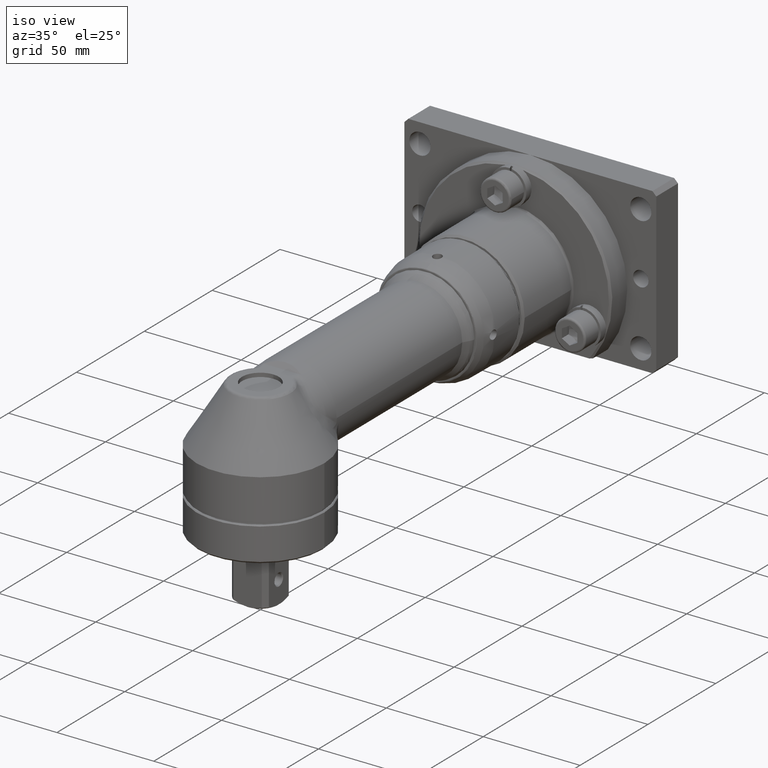
[diagram: clean part render]
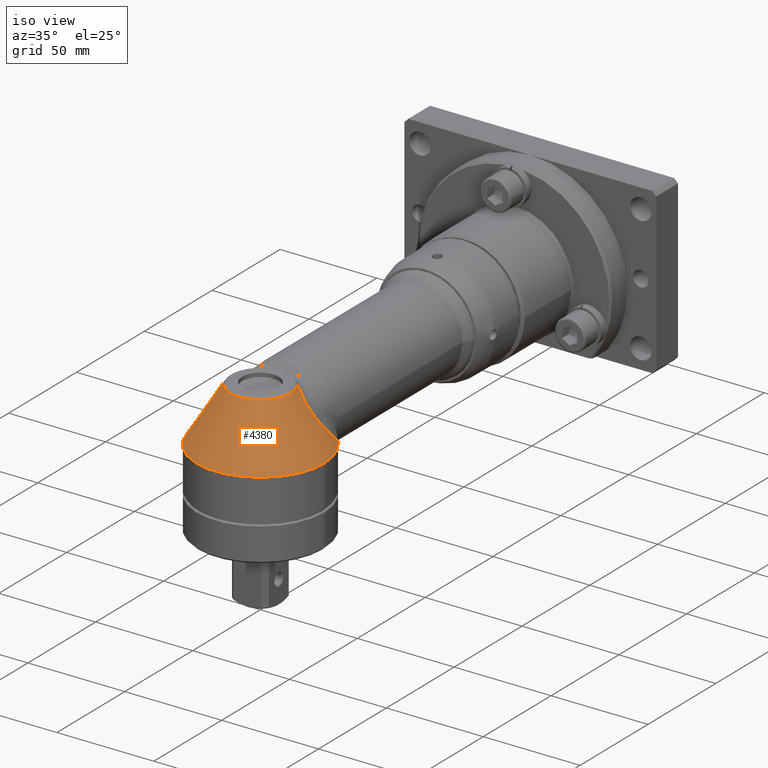
[diagram: same view with one face highlighted and labeled with its STEP entity id]
A machine part, iso view. The second image highlights one B-rep face of the part: STEP entity #4380.
In plain terms, the highlighted conical surface has half-angle 31.827 deg.
Its self-contained STEP definition (entity closure, byte-faithful):
#104=B_SPLINE_CURVE_WITH_KNOTS('',3,(#7526,#7527,#7528,#7529),
 .UNSPECIFIED.,.F.,.F.,(4,4),(-0.250366050684989,-1.84879626133252E-13),
 .UNSPECIFIED.);
#105=B_SPLINE_CURVE_WITH_KNOTS('',3,(#7531,#7532,#7533,#7534),
 .UNSPECIFIED.,.F.,.F.,(4,4),(-3.92410773251652,-3.67374168368724),
 .UNSPECIFIED.);
#106=B_SPLINE_CURVE_WITH_KNOTS('',3,(#7536,#7537,#7538,#7539,#7540,#7541,
#7542,#7543,#7544),.UNSPECIFIED.,.F.,.F.,(4,1,1,1,1,1,4),(-3.52469197188499,
-3.02116454733,-2.517637122775,-2.01410969822,-1.510582273665,-0.503527424554999,
0.),.UNSPECIFIED.);
#107=B_SPLINE_CURVE_WITH_KNOTS('',3,(#7547,#7548,#7549,#7550,#7551,#7552,
#7553,#7554,#7555),.UNSPECIFIED.,.F.,.F.,(4,1,1,1,1,1,4),(-3.52463635617369,
-2.51759739726702,-2.01407791781369,-1.51055843836036,-1.00703895890703,
-0.503519479453701,-3.70322134086901E-13),.UNSPECIFIED.);
#148=CONICAL_SURFACE('',#4740,24.,0.555493735265543);
#789=FACE_OUTER_BOUND('',#1049,.T.);
#1049=EDGE_LOOP('',(#3129,#3130,#3131,#3132,#3133,#3134,#3135));
#1361=CIRCLE('',#4715,33.);
#1364=CIRCLE('',#4718,33.);
#1379=CIRCLE('',#4741,15.5867219646892);
#1764=VERTEX_POINT('',#7404);
#1765=VERTEX_POINT('',#7415);
#1768=VERTEX_POINT('',#7422);
#1788=VERTEX_POINT('',#7525);
#1789=VERTEX_POINT('',#7530);
#1790=VERTEX_POINT('',#7535);
#1791=VERTEX_POINT('',#7545);
#2267=EDGE_CURVE('',#1765,#1764,#1361,.T.);
#2271=EDGE_CURVE('',#1768,#1765,#1364,.T.);
#2297=EDGE_CURVE('',#1768,#1788,#104,.T.);
#2298=EDGE_CURVE('',#1789,#1764,#105,.T.);
#2299=EDGE_CURVE('',#1790,#1789,#106,.T.);
#2300=EDGE_CURVE('',#1791,#1790,#1379,.T.);
#2301=EDGE_CURVE('',#1788,#1791,#107,.T.);
#3129=ORIENTED_EDGE('',*,*,#2297,.F.);
#3130=ORIENTED_EDGE('',*,*,#2271,.T.);
#3131=ORIENTED_EDGE('',*,*,#2267,.T.);
#3132=ORIENTED_EDGE('',*,*,#2298,.F.);
#3133=ORIENTED_EDGE('',*,*,#2299,.F.);
#3134=ORIENTED_EDGE('',*,*,#2300,.F.);
#3135=ORIENTED_EDGE('',*,*,#2301,.F.);
#4380=ADVANCED_FACE('',(#789),#148,.T.);
#4715=AXIS2_PLACEMENT_3D('',#7416,#5489,#5490);
#4718=AXIS2_PLACEMENT_3D('',#7423,#5496,#5497);
#4740=AXIS2_PLACEMENT_3D('',#7524,#5544,#5545);
#4741=AXIS2_PLACEMENT_3D('',#7546,#5546,#5547);
#5489=DIRECTION('center_axis',(-2.51278438236415E-15,2.47358770109276E-30,
1.));
#5490=DIRECTION('ref_axis',(1.,-6.70462140602243E-16,2.51278438236415E-15));
#5496=DIRECTION('center_axis',(-2.51278438236415E-15,2.47358770109276E-30,
1.));
#5497=DIRECTION('ref_axis',(1.,-6.70462140602243E-16,2.51278438236415E-15));
#5544=DIRECTION('center_axis',(2.51278438236415E-15,-2.47358770109276E-30,
-1.));
#5545=DIRECTION('ref_axis',(-1.01113107351369E-11,-1.,1.2246467988933E-16));
#5546=DIRECTION('center_axis',(-2.67523478007517E-15,2.58319715668433E-29,
1.));
#5547=DIRECTION('ref_axis',(-8.22718544505513E-14,-1.,-1.94264554880554E-28));
#7404=CARTESIAN_POINT('',(24.9781081050326,21.5660407927144,-8.9999999990097));
#7415=CARTESIAN_POINT('',(33.,-1.80839162026878E-14,-8.99999999999991));
#7416=CARTESIAN_POINT('Origin',(2.26150594412773E-14,-2.22622893098349E-29,
-8.99999999999999));
#7422=CARTESIAN_POINT('',(-24.9781081047678,21.5660407934603,-8.9999999999347));
#7423=CARTESIAN_POINT('Origin',(2.26150594412773E-14,-2.22622893098349E-29,
-8.99999999999999));
#7524=CARTESIAN_POINT('Origin',(-1.38203141030028E-14,1.36047323560102E-29,
5.50000000000001));
#7525=CARTESIAN_POINT('',(-25.0202849324219,19.908115969031,-7.34727873487054));
#7526=CARTESIAN_POINT('Ctrl Pts',(-24.9781117177503,21.5660385086011,-9.00000316337551));
#7527=CARTESIAN_POINT('Ctrl Pts',(-25.0063182284745,21.0119297991685,-8.45098709156732));
#7528=CARTESIAN_POINT('Ctrl Pts',(-25.0203474710151,20.4590618274538,-7.90002677174035));
#7529=CARTESIAN_POINT('Ctrl Pts',(-25.0202849324219,19.9081159690297,-7.3472787348693));
#7530=CARTESIAN_POINT('',(25.020284932422,19.9081159690375,-7.34727873487706));
#7531=CARTESIAN_POINT('Ctrl Pts',(25.020284932422,19.9081159690375,-7.34727873487706));
#7532=CARTESIAN_POINT('Ctrl Pts',(25.0203474710145,20.4590618233785,-7.90002676765152));
#7533=CARTESIAN_POINT('Ctrl Pts',(25.006318126091,21.0119298662487,-8.45098700850061));
#7534=CARTESIAN_POINT('Ctrl Pts',(24.9781116243924,21.5660385652418,-9.00000308255285));
#7535=CARTESIAN_POINT('',(13.060078860974,8.50765782983803,19.0547257235624));
#7536=CARTESIAN_POINT('Ctrl Pts',(13.0600788609724,8.507657829837,19.0547257235624));
#7537=CARTESIAN_POINT('Ctrl Pts',(14.0367230139461,8.17480687651784,18.0290137883677));
#7538=CARTESIAN_POINT('Ctrl Pts',(15.9629172706121,7.53701779169617,15.7774871757084));
#7539=CARTESIAN_POINT('Ctrl Pts',(18.7984006229168,7.26738732009914,11.6950686756984));
#7540=CARTESIAN_POINT('Ctrl Pts',(21.2429850285117,8.44397346138492,7.34294506266393));
#7541=CARTESIAN_POINT('Ctrl Pts',(23.5928993098376,11.4689390305308,1.9743374336844));
#7542=CARTESIAN_POINT('Ctrl Pts',(24.7965633121607,15.5355419496312,-2.84052733964005));
#7543=CARTESIAN_POINT('Ctrl Pts',(25.0201591569958,18.8000729719776,-6.23561125970013));
#7544=CARTESIAN_POINT('Ctrl Pts',(25.020284932422,19.9081159690323,-7.34727873487185));
#7545=CARTESIAN_POINT('',(-13.0600788609738,8.50765782984084,19.0547257235581));
#7546=CARTESIAN_POINT('Origin',(-4.71043549061845E-14,4.6613214805111E-29,
19.0547257235563));
#7547=CARTESIAN_POINT('Ctrl Pts',(-25.0202849324219,19.908115969031,-7.34727873487054));
#7548=CARTESIAN_POINT('Ctrl Pts',(-25.0200333855387,17.692064942289,-5.12397886627508));
#7549=CARTESIAN_POINT('Ctrl Pts',(-24.5867757617379,14.4449308423945,-1.67810834807142));
#7550=CARTESIAN_POINT('Ctrl Pts',(-23.007285706407,10.7050478682788,3.31531998722792));
#7551=CARTESIAN_POINT('Ctrl Pts',(-21.2440701552231,8.44460460719426,7.340891853294));
#7552=CARTESIAN_POINT('Ctrl Pts',(-18.7969782198911,7.26898989675816,11.6970784082662));
#7553=CARTESIAN_POINT('Ctrl Pts',(-15.9627501046334,7.53801592830851,15.7774396007435));
#7554=CARTESIAN_POINT('Ctrl Pts',(-14.036707603589,8.17481212853523,18.0290299729598));
#7555=CARTESIAN_POINT('Ctrl Pts',(-13.0600788609718,8.50765782983726,19.0547257235631));